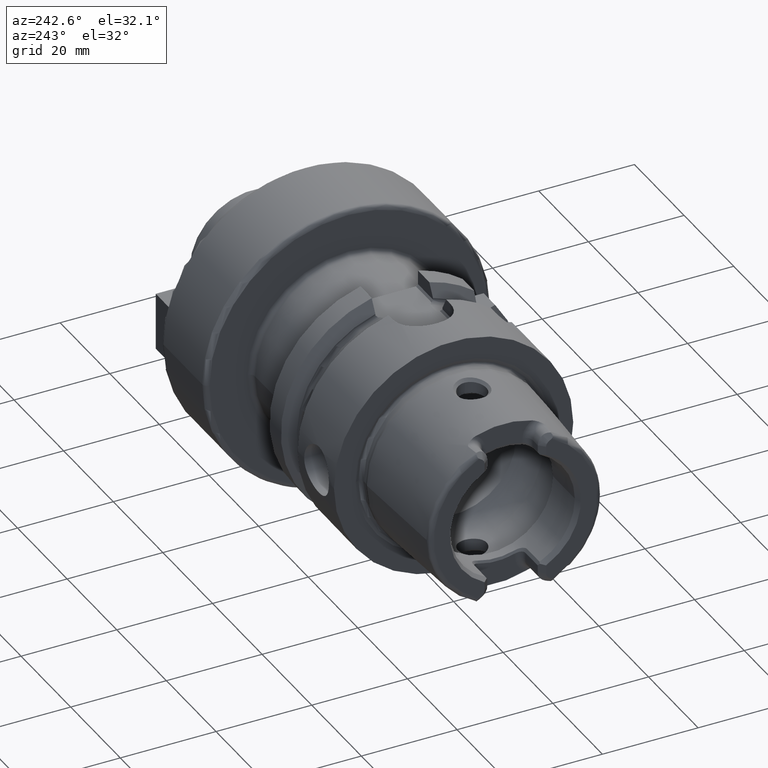
[diagram: clean part render]
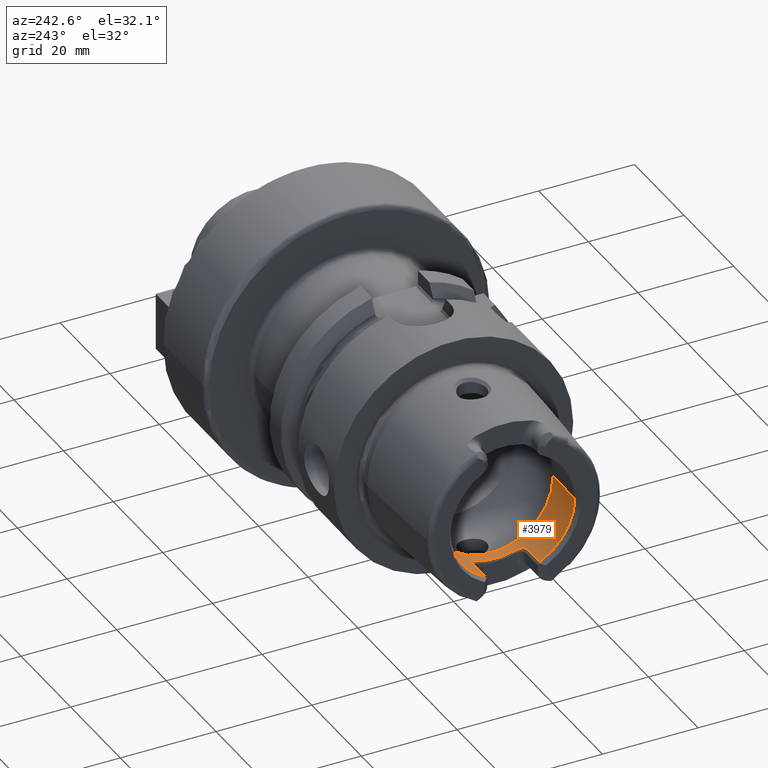
[diagram: same view with one face highlighted and labeled with its STEP entity id]
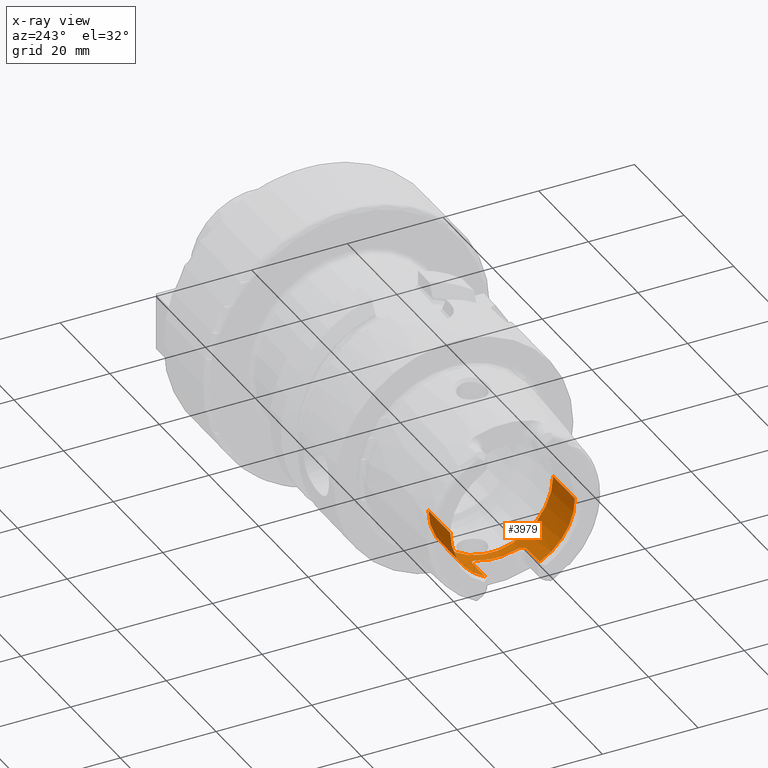
[diagram: x-ray of the same camera — body ghosted, the highlighted face saturated]
A machine part, auxiliary view. The second image highlights one B-rep face of the part: STEP entity #3979.
The next image is the same camera in x-ray: the body ghosted, the highlighted face saturated — about 0% of this face is hidden behind the body in this view.
In plain terms, the highlighted cylindrical surface (partial cylindrical patch) has radius 13.021 mm, axis along (1, 0, 0).
Its self-contained STEP definition (entity closure, byte-faithful):
#164=CARTESIAN_POINT('',(-2.375E1,0.E0,0.E0));
#165=DIRECTION('',(-1.E0,0.E0,0.E0));
#166=DIRECTION('',(0.E0,1.E0,0.E0));
#167=AXIS2_PLACEMENT_3D('',#164,#165,#166);
#186=CARTESIAN_POINT('',(-2.375E1,0.E0,0.E0));
#187=DIRECTION('',(-1.E0,0.E0,0.E0));
#188=DIRECTION('',(0.E0,-4.349817201113E-1,-9.004392834439E-1));
#189=AXIS2_PLACEMENT_3D('',#186,#187,#188);
#456=DIRECTION('',(1.E0,0.E0,0.E0));
#457=VECTOR('',#456,5.E0);
#458=CARTESIAN_POINT('',(-2.375E1,-5.663896977569E0,-1.172461990972E1));
#459=LINE('',#458,#457);
#460=CARTESIAN_POINT('',(-1.706132486541E1,-3.87E0,-1.243259992922E1));
#461=CARTESIAN_POINT('',(-1.705894931913E1,-3.948091654476E0,
-1.240829168279E1));
#462=CARTESIAN_POINT('',(-1.706441309206E1,-4.102870364684E0,
-1.235850704973E1));
#463=CARTESIAN_POINT('',(-1.710340937126E1,-4.332575060023E0,
-1.227984117765E1));
#464=CARTESIAN_POINT('',(-1.717180096637E1,-4.554379111812E0,
-1.219925586913E1));
#465=CARTESIAN_POINT('',(-1.726759596237E1,-4.764243794044E0,
-1.211875654714E1));
#466=CARTESIAN_POINT('',(-1.738971110869E1,-4.958984425980E0,
-1.204028059499E1));
#467=CARTESIAN_POINT('',(-1.753429552224E1,-5.134450973302E0,
-1.196639092679E1));
#468=CARTESIAN_POINT('',(-1.769814688581E1,-5.287549372908E0,
-1.189942311510E1));
#469=CARTESIAN_POINT('',(-1.787965354263E1,-5.418141852278E0,
-1.184043301133E1));
#470=CARTESIAN_POINT('',(-1.807911024602E1,-5.524630321581E0,
-1.179103046127E1));
#471=CARTESIAN_POINT('',(-1.829372880595E1,-5.603842524286E0,
-1.175351168471E1));
#472=CARTESIAN_POINT('',(-1.851977527645E1,-5.652930353736E0,
-1.172992742962E1));
#473=CARTESIAN_POINT('',(-1.867259884466E1,-5.663896977569E0,
-1.172461990972E1));
#474=CARTESIAN_POINT('',(-1.875E1,-5.663896977569E0,-1.172461990972E1));
#476=CARTESIAN_POINT('',(-1.706132486541E1,3.87E0,-1.243259992922E1));
#477=CARTESIAN_POINT('',(-1.706132486541E1,3.369759291873E0,-1.258831406395E1));
#478=CARTESIAN_POINT('',(-1.706132486543E1,2.350461057243E0,-1.283928497214E1));
#479=CARTESIAN_POINT('',(-1.706132486542E1,7.873060254891E-1,
-1.302889312722E1));
#480=CARTESIAN_POINT('',(-1.706132486542E1,-7.873060254894E-1,
-1.302889312722E1));
#481=CARTESIAN_POINT('',(-1.706132486543E1,-2.350461057241E0,
-1.283928497214E1));
#482=CARTESIAN_POINT('',(-1.706132486541E1,-3.369759291876E0,
-1.258831406395E1));
#483=CARTESIAN_POINT('',(-1.706132486541E1,-3.87E0,-1.243259992922E1));
#485=CARTESIAN_POINT('',(-1.875E1,5.663896977569E0,-1.172461990972E1));
#486=CARTESIAN_POINT('',(-1.867253385205E1,5.663896977569E0,-1.172461990972E1));
#487=CARTESIAN_POINT('',(-1.851960965794E1,5.652887713534E0,-1.172994778184E1));
#488=CARTESIAN_POINT('',(-1.829404762981E1,5.603940373139E0,-1.175346518954E1));
#489=CARTESIAN_POINT('',(-1.807890617342E1,5.524545608259E0,-1.179107033680E1));
#490=CARTESIAN_POINT('',(-1.788013782468E1,5.418376947730E0,-1.184032277023E1));
#491=CARTESIAN_POINT('',(-1.769964741780E1,5.288706180038E0,-1.189890407446E1));
#492=CARTESIAN_POINT('',(-1.753651365017E1,5.136729908552E0,-1.196540626531E1));
#493=CARTESIAN_POINT('',(-1.739224734480E1,4.962438291892E0,-1.203885194320E1));
#494=CARTESIAN_POINT('',(-1.726976173003E1,4.768262064128E0,-1.211717470493E1));
#495=CARTESIAN_POINT('',(-1.717314189077E1,4.558070073865E0,-1.219788504272E1));
#496=CARTESIAN_POINT('',(-1.710382652775E1,4.334631930509E0,-1.227912648142E1));
#497=CARTESIAN_POINT('',(-1.706445401734E1,4.103717960171E0,-1.235823255338E1));
#498=CARTESIAN_POINT('',(-1.705894190168E1,3.948335489392E0,-1.240821578224E1));
#499=CARTESIAN_POINT('',(-1.706132486541E1,3.87E0,-1.243259992922E1));
#501=DIRECTION('',(1.E0,0.E0,0.E0));
#502=VECTOR('',#501,5.E0);
#503=CARTESIAN_POINT('',(-2.375E1,5.663896977569E0,-1.172461990972E1));
#504=LINE('',#503,#502);
#505=DIRECTION('',(-1.E0,0.E0,0.E0));
#506=VECTOR('',#505,8.766098951869E0);
#507=CARTESIAN_POINT('',(-1.498390104813E1,1.3021E1,0.E0));
#508=LINE('',#507,#506);
#509=CARTESIAN_POINT('',(-1.498390104813E1,0.E0,0.E0));
#510=DIRECTION('',(-1.E0,0.E0,0.E0));
#511=DIRECTION('',(0.E0,1.E0,0.E0));
#512=AXIS2_PLACEMENT_3D('',#509,#510,#511);
#514=DIRECTION('',(-1.E0,0.E0,0.E0));
#515=VECTOR('',#514,8.766098951869E0);
#516=CARTESIAN_POINT('',(-1.498390104813E1,-1.3021E1,0.E0));
#517=LINE('',#516,#515);
#3090=CARTESIAN_POINT('',(-1.875E1,-5.663896977569E0,-1.172461990972E1));
#3091=VERTEX_POINT('',#3090);
#3092=CARTESIAN_POINT('',(-1.706132486541E1,-3.87E0,-1.243259992922E1));
#3093=VERTEX_POINT('',#3092);
#3094=CARTESIAN_POINT('',(-1.875E1,5.663896977569E0,-1.172461990972E1));
#3095=VERTEX_POINT('',#3094);
#3096=CARTESIAN_POINT('',(-1.706132486541E1,3.87E0,-1.243259992922E1));
#3097=VERTEX_POINT('',#3096);
#3341=CARTESIAN_POINT('',(-1.498390104813E1,1.3021E1,0.E0));
#3342=VERTEX_POINT('',#3341);
#3343=CARTESIAN_POINT('',(-2.375E1,1.3021E1,0.E0));
#3344=VERTEX_POINT('',#3343);
#3353=CARTESIAN_POINT('',(-1.498390104813E1,-1.3021E1,0.E0));
#3354=VERTEX_POINT('',#3353);
#3355=CARTESIAN_POINT('',(-2.375E1,-1.3021E1,0.E0));
#3356=VERTEX_POINT('',#3355);
#3361=CARTESIAN_POINT('',(-2.375E1,-5.663896977569E0,-1.172461990972E1));
#3362=VERTEX_POINT('',#3361);
#3363=CARTESIAN_POINT('',(-2.375E1,5.663896977569E0,-1.172461990972E1));
#3364=VERTEX_POINT('',#3363);
#3955=CARTESIAN_POINT('',(-2.66425E1,0.E0,0.E0));
#3956=DIRECTION('',(1.E0,0.E0,0.E0));
#3957=DIRECTION('',(0.E0,-1.E0,0.E0));
#3958=AXIS2_PLACEMENT_3D('',#3955,#3956,#3957);
#3959=CYLINDRICAL_SURFACE('',#3958,1.3021E1);
#3961=ORIENTED_EDGE('',*,*,#3960,.T.);
#3963=ORIENTED_EDGE('',*,*,#3962,.F.);
#3965=ORIENTED_EDGE('',*,*,#3964,.F.);
#3967=ORIENTED_EDGE('',*,*,#3966,.F.);
#3968=ORIENTED_EDGE('',*,*,#3947,.F.);
#3969=ORIENTED_EDGE('',*,*,#3695,.F.);
#3971=ORIENTED_EDGE('',*,*,#3970,.F.);
#3973=ORIENTED_EDGE('',*,*,#3972,.T.);
#3975=ORIENTED_EDGE('',*,*,#3974,.T.);
#3976=ORIENTED_EDGE('',*,*,#3711,.F.);
#3977=EDGE_LOOP('',(#3961,#3963,#3965,#3967,#3968,#3969,#3971,#3973,#3975,
#3976));
#3978=FACE_OUTER_BOUND('',#3977,.F.);
#3979=ADVANCED_FACE('',(#3978),#3959,.F.);
#168=CIRCLE('',#167,1.3021E1);
#190=CIRCLE('',#189,1.3021E1);
#475=B_SPLINE_CURVE_WITH_KNOTS('',3,(#460,#461,#462,#463,#464,#465,#466,#467,
#468,#469,#470,#471,#472,#473,#474),.UNSPECIFIED.,.F.,.F.,(4,1,1,1,1,1,1,1,1,1,
1,1,4),(0.E0,8.333333333333E-2,1.666666666667E-1,2.5E-1,3.333333333333E-1,
4.166666666667E-1,5.E-1,5.833333333333E-1,6.666666666667E-1,7.5E-1,
8.333333333333E-1,9.166666666667E-1,1.E0),.UNSPECIFIED.);
#484=B_SPLINE_CURVE_WITH_KNOTS('',3,(#476,#477,#478,#479,#480,#481,#482,#483),
.UNSPECIFIED.,.F.,.F.,(4,1,1,1,1,4),(0.E0,2.E-1,4.E-1,6.E-1,8.E-1,1.E0),
.UNSPECIFIED.);
#500=B_SPLINE_CURVE_WITH_KNOTS('',3,(#485,#486,#487,#488,#489,#490,#491,#492,
#493,#494,#495,#496,#497,#498,#499),.UNSPECIFIED.,.F.,.F.,(4,1,1,1,1,1,1,1,1,1,
1,1,4),(0.E0,8.333333333333E-2,1.666666666667E-1,2.5E-1,3.333333333333E-1,
4.166666666667E-1,5.E-1,5.833333333333E-1,6.666666666667E-1,7.5E-1,
8.333333333333E-1,9.166666666667E-1,1.E0),.UNSPECIFIED.);
#513=CIRCLE('',#512,1.3021E1);
#3695=EDGE_CURVE('',#3344,#3364,#168,.T.);
#3711=EDGE_CURVE('',#3362,#3356,#190,.T.);
#3947=EDGE_CURVE('',#3364,#3095,#504,.T.);
#3960=EDGE_CURVE('',#3362,#3091,#459,.T.);
#3962=EDGE_CURVE('',#3093,#3091,#475,.T.);
#3964=EDGE_CURVE('',#3097,#3093,#484,.T.);
#3966=EDGE_CURVE('',#3095,#3097,#500,.T.);
#3970=EDGE_CURVE('',#3342,#3344,#508,.T.);
#3972=EDGE_CURVE('',#3342,#3354,#513,.T.);
#3974=EDGE_CURVE('',#3354,#3356,#517,.T.);